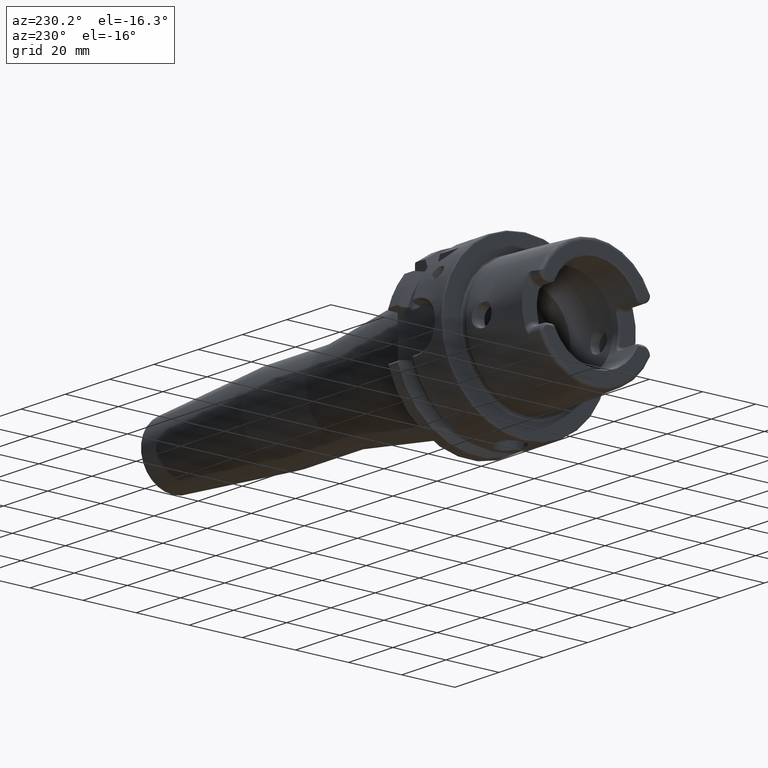
[diagram: clean part render]
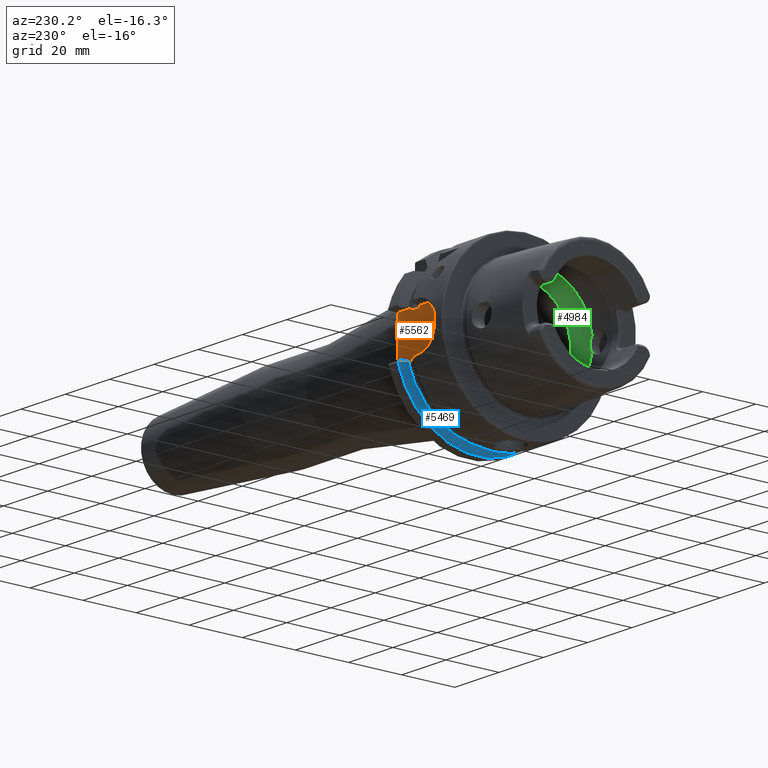
[diagram: same view with three faces highlighted in distinct colors, each labeled with its STEP entity id]
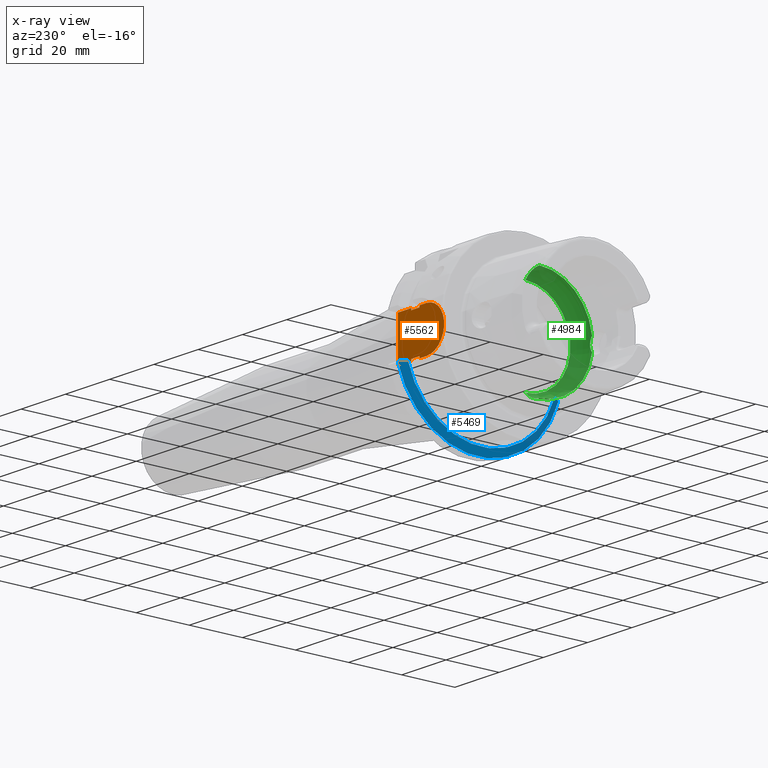
[diagram: x-ray of the same camera — body ghosted, the three highlighted faces saturated]
A machine part, auxiliary view with three faces highlighted in distinct colors.
The next image is the same camera in x-ray (body ghosted, the three faces saturated) — at least one of them is partly hidden behind the body in this view.
Their STEP definitions:

[orange] entity #5562 — the highlighted planar face has unit normal (0, -1, 0).
#686=DIRECTION('',(0.E0,0.E0,1.E0));
#687=VECTOR('',#686,1.6E1);
#688=CARTESIAN_POINT('',(2.6E1,2.65E1,-8.E0));
#689=LINE('',#688,#687);
#2030=DIRECTION('',(0.E0,0.E0,1.E0));
#2031=VECTOR('',#2030,6.515307716505E-1);
#2032=CARTESIAN_POINT('',(1.6125E1,2.65E1,-8.E0));
#2033=LINE('',#2032,#2031);
#2054=DIRECTION('',(0.E0,0.E0,1.E0));
#2055=VECTOR('',#2054,6.515307716505E-1);
#2056=CARTESIAN_POINT('',(1.6125E1,2.65E1,7.348469228350E0));
#2057=LINE('',#2056,#2055);
#2267=DIRECTION('',(0.E0,0.E0,1.E0));
#2268=VECTOR('',#2267,6.515307716505E-1);
#2269=CARTESIAN_POINT('',(1.9875E1,2.65E1,-8.E0));
#2270=LINE('',#2269,#2268);
#2283=DIRECTION('',(0.E0,0.E0,1.E0));
#2284=VECTOR('',#2283,6.515307716505E-1);
#2285=CARTESIAN_POINT('',(1.9875E1,2.65E1,7.348469228350E0));
#2286=LINE('',#2285,#2284);
#2307=CARTESIAN_POINT('',(1.3E1,2.65E1,0.E0));
#2308=DIRECTION('',(0.E0,-1.E0,0.E0));
#2309=DIRECTION('',(0.E0,0.E0,1.E0));
#2310=AXIS2_PLACEMENT_3D('',#2307,#2308,#2309);
#2312=DIRECTION('',(1.E0,0.E0,0.E0));
#2313=VECTOR('',#2312,3.125E0);
#2314=CARTESIAN_POINT('',(1.3E1,2.65E1,-8.E0));
#2315=LINE('',#2314,#2313);
#2316=DIRECTION('',(1.E0,0.E0,0.E0));
#2317=VECTOR('',#2316,6.125E0);
#2318=CARTESIAN_POINT('',(1.9875E1,2.65E1,-8.E0));
#2319=LINE('',#2318,#2317);
#2320=DIRECTION('',(-1.E0,0.E0,0.E0));
#2321=VECTOR('',#2320,6.125E0);
#2322=CARTESIAN_POINT('',(2.6E1,2.65E1,8.E0));
#2323=LINE('',#2322,#2321);
#2324=DIRECTION('',(-1.E0,0.E0,0.E0));
#2325=VECTOR('',#2324,3.125E0);
#2326=CARTESIAN_POINT('',(1.6125E1,2.65E1,8.E0));
#2327=LINE('',#2326,#2325);
#2422=DIRECTION('',(1.E0,0.E0,0.E0));
#2423=VECTOR('',#2422,3.75E0);
#2424=CARTESIAN_POINT('',(1.6125E1,2.65E1,7.348469228350E0));
#2425=LINE('',#2424,#2423);
#2440=DIRECTION('',(1.E0,0.E0,0.E0));
#2441=VECTOR('',#2440,3.75E0);
#2442=CARTESIAN_POINT('',(1.6125E1,2.65E1,-7.348469228350E0));
#2443=LINE('',#2442,#2441);
#2611=CARTESIAN_POINT('',(2.6E1,2.65E1,-8.E0));
#2612=CARTESIAN_POINT('',(2.6E1,2.65E1,8.E0));
#2613=VERTEX_POINT('',#2611);
#2614=VERTEX_POINT('',#2612);
#2615=CARTESIAN_POINT('',(1.6125E1,2.65E1,-8.E0));
#2616=CARTESIAN_POINT('',(1.6125E1,2.65E1,-7.348469228350E0));
#2617=VERTEX_POINT('',#2615);
#2618=VERTEX_POINT('',#2616);
#2619=CARTESIAN_POINT('',(1.6125E1,2.65E1,7.348469228350E0));
#2620=CARTESIAN_POINT('',(1.6125E1,2.65E1,8.E0));
#2621=VERTEX_POINT('',#2619);
#2622=VERTEX_POINT('',#2620);
#2627=CARTESIAN_POINT('',(1.9875E1,2.65E1,-7.348469228350E0));
#2628=VERTEX_POINT('',#2627);
#2629=CARTESIAN_POINT('',(1.9875E1,2.65E1,7.348469228350E0));
#2630=VERTEX_POINT('',#2629);
#2631=CARTESIAN_POINT('',(1.9875E1,2.65E1,-8.E0));
#2632=VERTEX_POINT('',#2631);
#2633=CARTESIAN_POINT('',(1.9875E1,2.65E1,8.E0));
#2634=VERTEX_POINT('',#2633);
#2639=CARTESIAN_POINT('',(1.3E1,2.65E1,8.E0));
#2640=CARTESIAN_POINT('',(1.3E1,2.65E1,-8.E0));
#2641=VERTEX_POINT('',#2639);
#2642=VERTEX_POINT('',#2640);
#5538=CARTESIAN_POINT('',(0.E0,2.65E1,0.E0));
#5539=DIRECTION('',(0.E0,-1.E0,0.E0));
#5540=DIRECTION('',(1.E0,0.E0,0.E0));
#5541=AXIS2_PLACEMENT_3D('',#5538,#5539,#5540);
#5542=PLANE('',#5541);
#5544=ORIENTED_EDGE('',*,*,#5543,.T.);
#5545=ORIENTED_EDGE('',*,*,#5517,.T.);
#5546=ORIENTED_EDGE('',*,*,#5221,.T.);
#5548=ORIENTED_EDGE('',*,*,#5547,.T.);
#5549=ORIENTED_EDGE('',*,*,#5480,.F.);
#5550=ORIENTED_EDGE('',*,*,#5531,.T.);
#5551=ORIENTED_EDGE('',*,*,#3808,.T.);
#5553=ORIENTED_EDGE('',*,*,#5552,.T.);
#5554=ORIENTED_EDGE('',*,*,#5499,.F.);
#5556=ORIENTED_EDGE('',*,*,#5555,.F.);
#5557=ORIENTED_EDGE('',*,*,#5243,.T.);
#5559=ORIENTED_EDGE('',*,*,#5558,.T.);
#5560=EDGE_LOOP('',(#5544,#5545,#5546,#5548,#5549,#5550,#5551,#5553,#5554,#5556,
#5557,#5559));
#5561=FACE_OUTER_BOUND('',#5560,.F.);
#5562=ADVANCED_FACE('',(#5561),#5542,.F.);
#2311=CIRCLE('',#2310,8.E0);
#3808=EDGE_CURVE('',#2613,#2614,#689,.T.);
#5221=EDGE_CURVE('',#2617,#2618,#2033,.T.);
#5243=EDGE_CURVE('',#2621,#2622,#2057,.T.);
#5480=EDGE_CURVE('',#2632,#2628,#2270,.T.);
#5499=EDGE_CURVE('',#2630,#2634,#2286,.T.);
#5517=EDGE_CURVE('',#2642,#2617,#2315,.T.);
#5531=EDGE_CURVE('',#2632,#2613,#2319,.T.);
#5543=EDGE_CURVE('',#2641,#2642,#2311,.T.);
#5547=EDGE_CURVE('',#2618,#2628,#2443,.T.);
#5552=EDGE_CURVE('',#2614,#2634,#2323,.T.);
#5555=EDGE_CURVE('',#2621,#2630,#2425,.T.);
#5558=EDGE_CURVE('',#2622,#2641,#2327,.T.);

[blue] entity #5469 — the highlighted conical surface has half-angle 60 deg.
#2218=CARTESIAN_POINT('',(2.137749905409E1,3.030257052423E1,-8.602570524226E0));
#2219=CARTESIAN_POINT('',(2.132921046999E1,3.023485181706E1,-8.534851817061E0));
#2220=CARTESIAN_POINT('',(2.123311736136E1,3.009992541679E1,-8.399925416791E0));
#2221=CARTESIAN_POINT('',(2.109043172139E1,2.989907088202E1,-8.199070882020E0));
#2222=CARTESIAN_POINT('',(2.099627445276E1,2.976618689262E1,-8.066186892616E0));
#2223=CARTESIAN_POINT('',(2.094943773112E1,2.97E1,-8.E0));
#2225=CARTESIAN_POINT('',(1.9875E1,2.776816547996E1,-8.E0));
#2226=CARTESIAN_POINT('',(1.999165415311E1,2.797843452791E1,-8.E0));
#2227=CARTESIAN_POINT('',(2.022678408776E1,2.840189003059E1,-8.E0));
#2228=CARTESIAN_POINT('',(2.058492130902E1,2.904580805273E1,-8.E0));
#2229=CARTESIAN_POINT('',(2.082732680308E1,2.948095924086E1,-8.E0));
#2230=CARTESIAN_POINT('',(2.094943773112E1,2.97E1,-8.E0));
#2232=CARTESIAN_POINT('',(1.9875E1,0.E0,0.E0));
#2233=DIRECTION('',(-1.E0,0.E0,0.E0));
#2234=DIRECTION('',(0.E0,9.609161313143E-1,-2.768396441624E-1));
#2235=AXIS2_PLACEMENT_3D('',#2232,#2233,#2234);
#2237=CARTESIAN_POINT('',(2.110827564058E1,-2.97E1,-9.E0));
#2238=CARTESIAN_POINT('',(2.096740886767E1,-2.944505518705E1,-9.E0));
#2239=CARTESIAN_POINT('',(2.068822774339E1,-2.893923282223E1,-9.E0));
#2240=CARTESIAN_POINT('',(2.027716456988E1,-2.819275590811E1,-9.E0));
#2241=CARTESIAN_POINT('',(2.000820237647E1,-2.770314203488E1,-9.E0));
#2242=CARTESIAN_POINT('',(1.9875E1,-2.746035349595E1,-9.E0));
#2244=CARTESIAN_POINT('',(2.110827564058E1,-2.97E1,-9.E0));
#2245=CARTESIAN_POINT('',(2.115274337122E1,-2.976176295487E1,
-9.061762954871E0));
#2246=CARTESIAN_POINT('',(2.124208175331E1,-2.988571693019E1,
-9.185716930188E0));
#2247=CARTESIAN_POINT('',(2.133222573231E1,-3.001052712454E1,
-9.310527124541E0));
#2248=CARTESIAN_POINT('',(2.137749905409E1,-3.007314630073E1,
-9.373146300730E0));
#2250=CARTESIAN_POINT('',(2.137749905409E1,0.E0,0.E0));
#2251=DIRECTION('',(1.E0,0.E0,0.E0));
#2252=DIRECTION('',(0.E0,-9.547030571660E-1,-2.975602000232E-1));
#2253=AXIS2_PLACEMENT_3D('',#2250,#2251,#2252);
#2635=CARTESIAN_POINT('',(1.9875E1,2.776816547996E1,-8.E0));
#2636=VERTEX_POINT('',#2635);
#2667=CARTESIAN_POINT('',(1.9875E1,-2.746035349595E1,-9.E0));
#2668=VERTEX_POINT('',#2667);
#2887=VERTEX_POINT('',#2244);
#2888=VERTEX_POINT('',#2248);
#2910=VERTEX_POINT('',#2218);
#2911=VERTEX_POINT('',#2223);
#5454=CARTESIAN_POINT('',(2.062624952704E1,0.E0,0.E0));
#5455=DIRECTION('',(1.E0,0.E0,0.E0));
#5456=DIRECTION('',(0.E0,0.E0,1.E0));
#5457=AXIS2_PLACEMENT_3D('',#5454,#5455,#5456);
#5458=CONICAL_SURFACE('',#5457,3.019879765E1,6.E1);
#5459=ORIENTED_EDGE('',*,*,#3943,.T.);
#5461=ORIENTED_EDGE('',*,*,#5460,.F.);
#5463=ORIENTED_EDGE('',*,*,#5462,.T.);
#5464=ORIENTED_EDGE('',*,*,#5413,.F.);
#5465=ORIENTED_EDGE('',*,*,#5386,.T.);
#5466=ORIENTED_EDGE('',*,*,#3847,.T.);
#5467=EDGE_LOOP('',(#5459,#5461,#5463,#5464,#5465,#5466));
#5468=FACE_OUTER_BOUND('',#5467,.F.);
#5469=ADVANCED_FACE('',(#5468),#5458,.T.);
#2224=B_SPLINE_CURVE_WITH_KNOTS('',3,(#2218,#2219,#2220,#2221,#2222,#2223),
.UNSPECIFIED.,.F.,.F.,(4,1,1,4),(0.E0,3.333333333333E-1,6.666666666667E-1,1.E0),
.UNSPECIFIED.);
#2231=B_SPLINE_CURVE_WITH_KNOTS('',3,(#2225,#2226,#2227,#2228,#2229,#2230),
.UNSPECIFIED.,.F.,.F.,(4,1,1,4),(0.E0,3.333333333333E-1,6.666666666667E-1,1.E0),
.UNSPECIFIED.);
#2236=CIRCLE('',#2235,2.88975953E1);
#2243=B_SPLINE_CURVE_WITH_KNOTS('',3,(#2237,#2238,#2239,#2240,#2241,#2242),
.UNSPECIFIED.,.F.,.F.,(4,1,1,4),(0.E0,3.333333333333E-1,6.666666666667E-1,1.E0),
.UNSPECIFIED.);
#2249=B_SPLINE_CURVE_WITH_KNOTS('',3,(#2244,#2245,#2246,#2247,#2248),
.UNSPECIFIED.,.F.,.F.,(4,1,4),(0.E0,5.E-1,1.E0),.UNSPECIFIED.);
#2254=CIRCLE('',#2253,3.15E1);
#3847=EDGE_CURVE('',#2888,#2910,#2254,.T.);
#3943=EDGE_CURVE('',#2910,#2911,#2224,.T.);
#5386=EDGE_CURVE('',#2887,#2888,#2249,.T.);
#5413=EDGE_CURVE('',#2887,#2668,#2243,.T.);
#5460=EDGE_CURVE('',#2636,#2911,#2231,.T.);
#5462=EDGE_CURVE('',#2636,#2668,#2236,.T.);

[green] entity #4984 — the highlighted toroidal blend (fillet) surface has major radius 11.7986 mm and minor (blend) radius 8.2014 mm.
#267=CARTESIAN_POINT('',(9.100685570619E-2,0.E0,0.E0));
#268=DIRECTION('',(1.E0,0.E0,0.E0));
#269=DIRECTION('',(0.E0,0.E0,1.E0));
#270=AXIS2_PLACEMENT_3D('',#267,#268,#269);
#1781=CARTESIAN_POINT('',(-6.25E0,-1.983683432405E1,-2.549509756796E0));
#1783=CARTESIAN_POINT('',(-6.25E0,-1.983683432405E1,2.549509756796E0));
#1799=CARTESIAN_POINT('',(-6.25E0,0.E0,0.E0));
#1800=DIRECTION('',(1.E0,0.E0,0.E0));
#1801=DIRECTION('',(0.E0,0.E0,1.E0));
#1802=AXIS2_PLACEMENT_3D('',#1799,#1800,#1801);
#1812=CARTESIAN_POINT('',(-6.25E0,0.E0,0.E0));
#1813=DIRECTION('',(1.E0,0.E0,0.E0));
#1814=DIRECTION('',(0.E0,-9.918417211620E-1,-1.274754884772E-1));
#1815=AXIS2_PLACEMENT_3D('',#1812,#1813,#1814);
#1817=CARTESIAN_POINT('',(-6.25E0,-1.983683432405E1,-2.549509756796E0));
#1818=CARTESIAN_POINT('',(-6.101283299350E0,-1.985745106764E1,
-2.389098161705E0));
#1819=CARTESIAN_POINT('',(-5.823011759718E0,-1.989111915045E1,
-2.033654081724E0));
#1820=CARTESIAN_POINT('',(-5.488290434370E0,-1.992204764600E1,
-1.383194941896E0));
#1821=CARTESIAN_POINT('',(-5.289411510405E0,-1.993633365189E1,
-6.797937079503E-1));
#1822=CARTESIAN_POINT('',(-5.25E0,-1.993880636712E1,-2.232966073821E-1));
#1823=CARTESIAN_POINT('',(-5.25E0,-1.993880636712E1,-1.256780224004E-14));
#1825=CARTESIAN_POINT('',(-6.25E0,0.E0,-1.179860506927E1));
#1826=DIRECTION('',(0.E0,1.E0,0.E0));
#1827=DIRECTION('',(7.731620031199E-1,0.E0,-6.342085752586E-1));
#1828=AXIS2_PLACEMENT_3D('',#1825,#1826,#1827);
#1830=CARTESIAN_POINT('',(-6.25E0,0.E0,1.179860506927E1));
#1831=DIRECTION('',(0.E0,-1.E0,0.E0));
#1832=DIRECTION('',(7.731620031199E-1,0.E0,6.342085752586E-1));
#1833=AXIS2_PLACEMENT_3D('',#1830,#1831,#1832);
#1835=CARTESIAN_POINT('',(-5.25E0,-1.993880636712E1,-1.256780224004E-14));
#1836=CARTESIAN_POINT('',(-5.25E0,-1.993880636712E1,2.265312399457E-1));
#1837=CARTESIAN_POINT('',(-5.290704077549E0,-1.993625163992E1,
6.873696590481E-1));
#1838=CARTESIAN_POINT('',(-5.490534556484E0,-1.992186156005E1,
1.388204097733E0));
#1839=CARTESIAN_POINT('',(-5.824328578687E0,-1.989096611667E1,
2.035393791106E0));
#1840=CARTESIAN_POINT('',(-6.101748857213E0,-1.985738652689E1,
2.389600330454E0));
#1841=CARTESIAN_POINT('',(-6.25E0,-1.983683432405E1,2.549509756796E0));
#2559=CARTESIAN_POINT('',(9.100685570619E-2,0.E0,-1.7E1));
#2560=CARTESIAN_POINT('',(9.100685570619E-2,0.E0,1.7E1));
#2561=VERTEX_POINT('',#2559);
#2562=VERTEX_POINT('',#2560);
#2563=CARTESIAN_POINT('',(-6.25E0,0.E0,-1.99999999E1));
#2564=VERTEX_POINT('',#2563);
#2565=CARTESIAN_POINT('',(-6.25E0,0.E0,1.99999999E1));
#2566=VERTEX_POINT('',#2565);
#2858=VERTEX_POINT('',#1781);
#2859=VERTEX_POINT('',#1783);
#2861=VERTEX_POINT('',#1823);
#4970=CARTESIAN_POINT('',(-6.25E0,0.E0,0.E0));
#4971=DIRECTION('',(1.E0,0.E0,0.E0));
#4972=DIRECTION('',(0.E0,0.E0,1.E0));
#4973=AXIS2_PLACEMENT_3D('',#4970,#4971,#4972);
#4974=TOROIDAL_SURFACE('',#4973,1.179860506927E1,8.201394830732E0);
#4975=ORIENTED_EDGE('',*,*,#4909,.F.);
#4976=ORIENTED_EDGE('',*,*,#4965,.T.);
#4977=ORIENTED_EDGE('',*,*,#4927,.F.);
#4978=ORIENTED_EDGE('',*,*,#3243,.F.);
#4979=ORIENTED_EDGE('',*,*,#4924,.T.);
#4980=ORIENTED_EDGE('',*,*,#4959,.T.);
#4981=ORIENTED_EDGE('',*,*,#4849,.F.);
#4982=EDGE_LOOP('',(#4975,#4976,#4977,#4978,#4979,#4980,#4981));
#4983=FACE_OUTER_BOUND('',#4982,.F.);
#4984=ADVANCED_FACE('',(#4983),#4974,.F.);
#271=CIRCLE('',#270,1.7E1);
#1803=CIRCLE('',#1802,1.99999999E1);
#1816=CIRCLE('',#1815,1.99999999E1);
#1824=B_SPLINE_CURVE_WITH_KNOTS('',3,(#1817,#1818,#1819,#1820,#1821,#1822,
#1823),.UNSPECIFIED.,.F.,.F.,(4,1,1,1,4),(0.E0,2.5E-1,5.E-1,7.5E-1,1.E0),
.UNSPECIFIED.);
#1829=CIRCLE('',#1828,8.201394830732E0);
#1834=CIRCLE('',#1833,8.201394830732E0);
#1842=B_SPLINE_CURVE_WITH_KNOTS('',3,(#1835,#1836,#1837,#1838,#1839,#1840,
#1841),.UNSPECIFIED.,.F.,.F.,(4,1,1,1,4),(0.E0,2.5E-1,5.E-1,7.5E-1,1.E0),
.UNSPECIFIED.);
#3243=EDGE_CURVE('',#2562,#2561,#271,.T.);
#4849=EDGE_CURVE('',#2861,#2859,#1842,.T.);
#4909=EDGE_CURVE('',#2858,#2861,#1824,.T.);
#4924=EDGE_CURVE('',#2562,#2566,#1834,.T.);
#4927=EDGE_CURVE('',#2561,#2564,#1829,.T.);
#4959=EDGE_CURVE('',#2566,#2859,#1803,.T.);
#4965=EDGE_CURVE('',#2858,#2564,#1816,.T.);